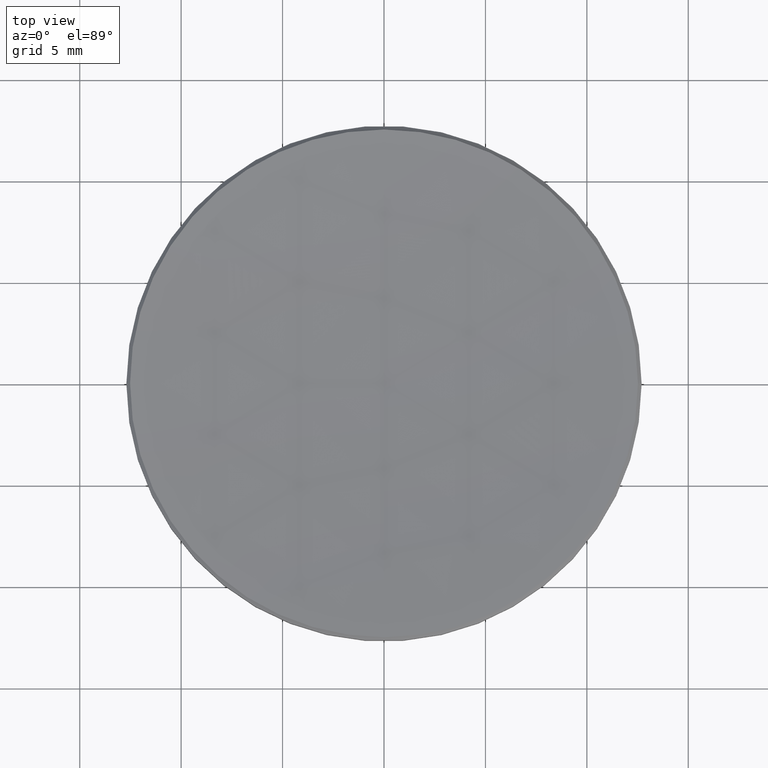
[diagram: clean part render]
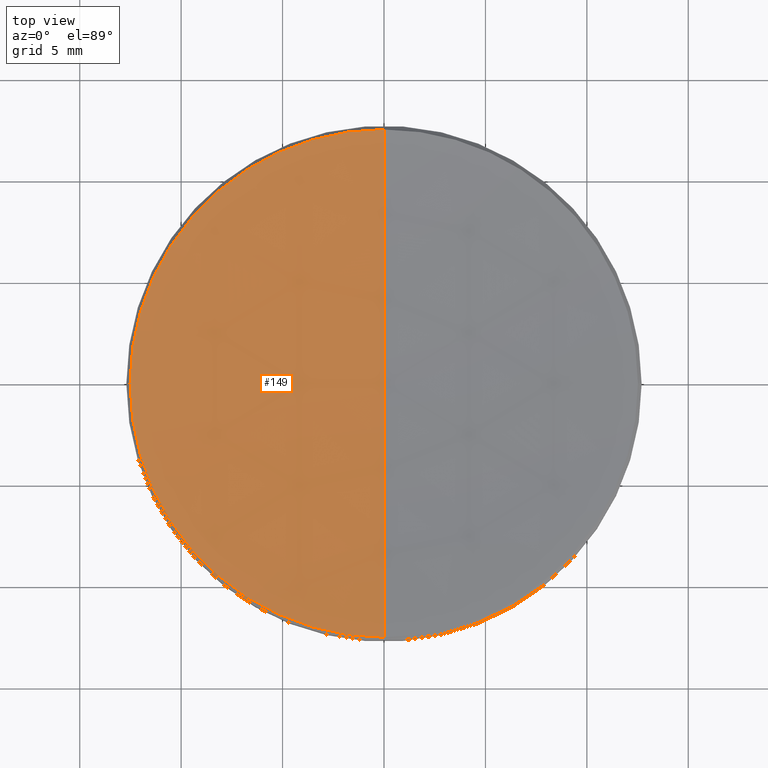
[diagram: same view with one face highlighted and labeled with its STEP entity id]
A machine part, top view. The second image highlights one B-rep face of the part: STEP entity #149.
In plain terms, the highlighted spherical surface has radius 131.56 mm.
Its self-contained STEP definition (entity closure, byte-faithful):
#2 = VERTEX_POINT ( 'NONE', #222 ) ;
#4 = EDGE_LOOP ( 'NONE', ( #285, #51, #282, #128 ) ) ;
#21 = AXIS2_PLACEMENT_3D ( 'NONE', #190, #321, #36 ) ;
#24 = VERTEX_POINT ( 'NONE', #34 ) ;
#34 = CARTESIAN_POINT ( 'NONE',  ( -12.51756548749907694, 0.000000000000000000, 5.982434512500911516 ) ) ;
#36 = DIRECTION ( 'NONE',  ( -1.224646799147353207E-16, -1.000000000000000000, 0.000000000000000000 ) ) ;
#37 = DIRECTION ( 'NONE',  ( -0.000000000000000000, -0.000000000000000000, 1.000000000000000000 ) ) ;
#45 = DIRECTION ( 'NONE',  ( 1.000000000000000000, 0.000000000000000000, 0.000000000000000000 ) ) ;
#51 = ORIENTED_EDGE ( 'NONE', *, *, #247, .T. ) ;
#57 = DIRECTION ( 'NONE',  ( -0.000000000000000000, -0.000000000000000000, 1.000000000000000000 ) ) ;
#69 = CIRCLE ( 'NONE', #88, 12.51756548749907694 ) ;
#71 = FACE_OUTER_BOUND ( 'NONE', #4, .T. ) ;
#72 = AXIS2_PLACEMENT_3D ( 'NONE', #248, #45, #175 ) ;
#88 = AXIS2_PLACEMENT_3D ( 'NONE', #115, #57, #249 ) ;
#104 = VERTEX_POINT ( 'NONE', #236 ) ;
#115 = CARTESIAN_POINT ( 'NONE',  ( 0.000000000000000000, 0.000000000000000000, 5.982434512500911516 ) ) ;
#122 = DIRECTION ( 'NONE',  ( 0.000000000000000000, 1.000000000000000000, 0.000000000000000000 ) ) ;
#128 = ORIENTED_EDGE ( 'NONE', *, *, #242, .T. ) ;
#140 = DIRECTION ( 'NONE',  ( 1.000000000000000000, 0.000000000000000000, 0.000000000000000000 ) ) ;
#149 = ADVANCED_FACE ( 'NONE', ( #71 ), #246, .F. ) ;
#162 = CIRCLE ( 'NONE', #72, 131.5600000000000023 ) ;
#175 = DIRECTION ( 'NONE',  ( 0.000000000000000000, 0.000000000000000000, -1.000000000000000000 ) ) ;
#190 = CARTESIAN_POINT ( 'NONE',  ( 0.000000000000000000, 0.000000000000000000, 136.9455749538715850 ) ) ;
#195 = CARTESIAN_POINT ( 'NONE',  ( 0.000000000000000000, 0.000000000000000000, 5.982434512500911516 ) ) ;
#205 = AXIS2_PLACEMENT_3D ( 'NONE', #272, #326, #122 ) ;
#208 = EDGE_CURVE ( 'NONE', #267, #24, #228, .T. ) ;
#219 = CARTESIAN_POINT ( 'NONE',  ( 0.000000000000000000, 12.51756548749897568, 5.982434512500911516 ) ) ;
#222 = CARTESIAN_POINT ( 'NONE',  ( -1.532959650738299683E-15, -12.51756548749897568, 5.982434512500911516 ) ) ;
#226 = AXIS2_PLACEMENT_3D ( 'NONE', #195, #37, #140 ) ;
#228 = CIRCLE ( 'NONE', #226, 12.51756548749907694 ) ;
#236 = CARTESIAN_POINT ( 'NONE',  ( 0.000000000000000000, 8.055726644791288963E-15, 5.385574953871569370 ) ) ;
#242 = EDGE_CURVE ( 'NONE', #24, #2, #69, .T. ) ;
#246 = SPHERICAL_SURFACE ( 'NONE', #205, 131.5600000000000023 ) ;
#247 = EDGE_CURVE ( 'NONE', #104, #267, #162, .T. ) ;
#248 = CARTESIAN_POINT ( 'NONE',  ( 0.000000000000000000, 0.000000000000000000, 136.9455749538715850 ) ) ;
#249 = DIRECTION ( 'NONE',  ( 1.000000000000000000, 0.000000000000000000, 0.000000000000000000 ) ) ;
#267 = VERTEX_POINT ( 'NONE', #219 ) ;
#272 = CARTESIAN_POINT ( 'NONE',  ( 0.000000000000000000, 0.000000000000000000, 136.9455749538715850 ) ) ;
#282 = ORIENTED_EDGE ( 'NONE', *, *, #208, .T. ) ;
#285 = ORIENTED_EDGE ( 'NONE', *, *, #319, .F. ) ;
#319 = EDGE_CURVE ( 'NONE', #104, #2, #322, .T. ) ;
#321 = DIRECTION ( 'NONE',  ( -1.000000000000000000, 1.224646799147353207E-16, 0.000000000000000000 ) ) ;
#322 = CIRCLE ( 'NONE', #21, 131.5600000000000023 ) ;
#326 = DIRECTION ( 'NONE',  ( -1.000000000000000000, 0.000000000000000000, 0.000000000000000000 ) ) ;